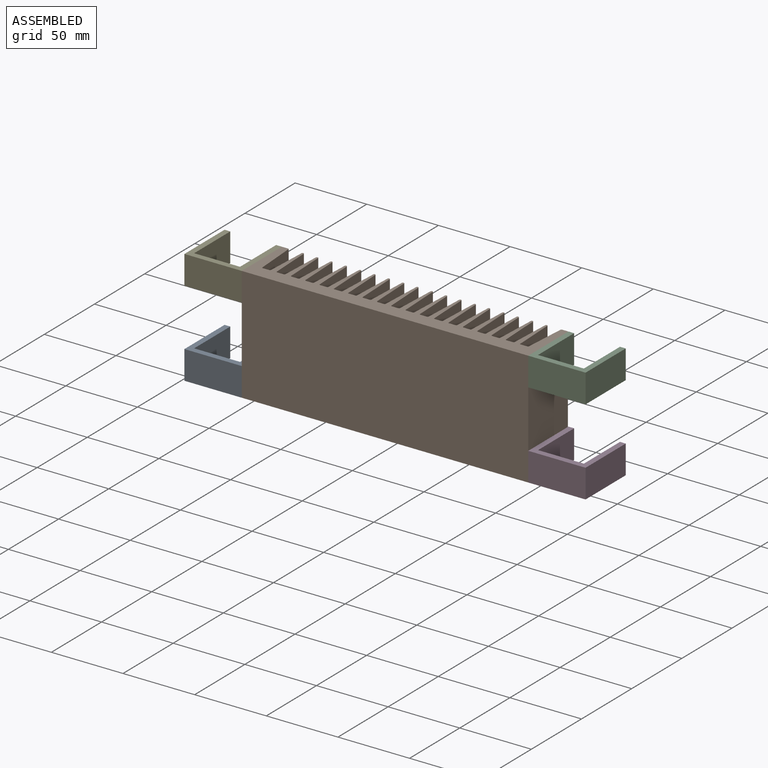
[diagram: assembled view]
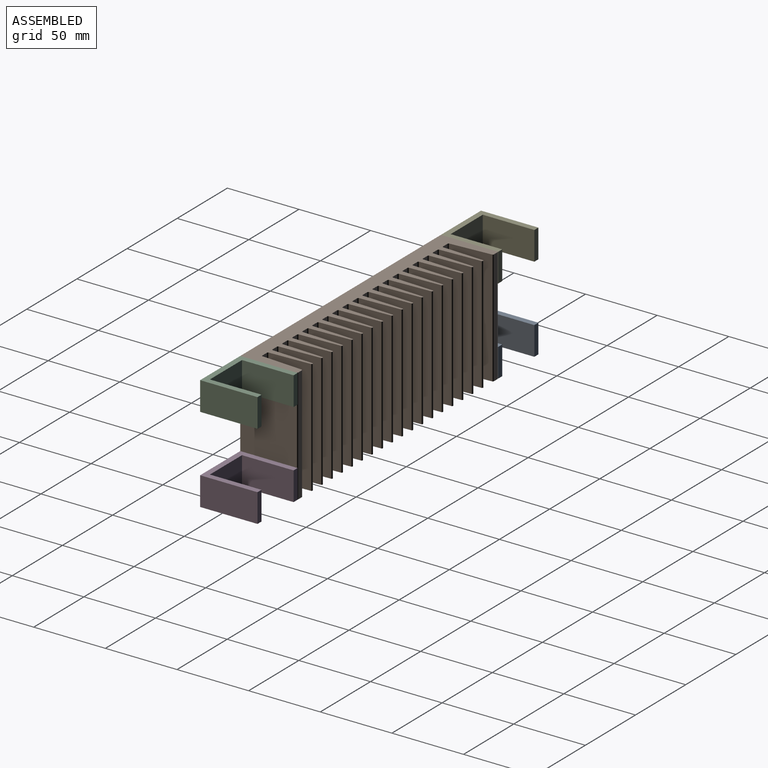
[diagram: assembled view, second angle]
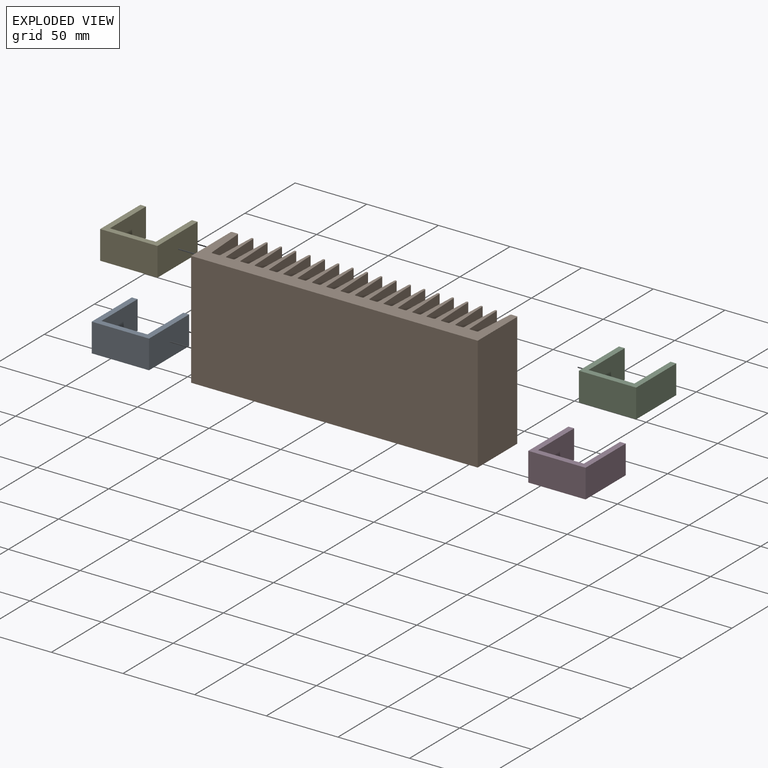
[diagram: exploded view]
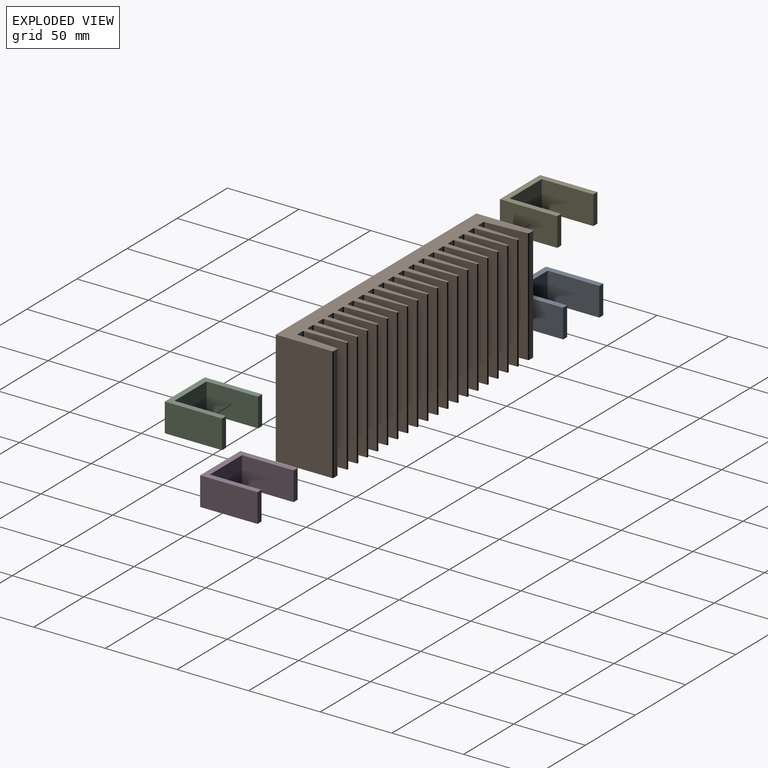
[diagram: exploded view, second angle]
ASSEMBLY  parts=5 mates=4
PART A: 10 faces, bbox 40x40x20 mm
  f0: plane 40x20mm, normal (-1,0,0), area 800mm2, adj f1,f7,f8,f9
  f1: plane 40x20mm, normal (0,-1,0), area 800mm2, adj f0,f2,f8,f9
  f2: plane 40x20mm, normal (1,0,0), area 800mm2, adj f1,f3,f8,f9
  f3: plane 20x4mm, normal (0,1,0), area 80mm2, adj f2,f4,f8,f9
  f4: plane 36x20mm, normal (-1,0,0), area 720mm2, adj f3,f5,f8,f9
  f5: plane 32x20mm, normal (0,1,0), area 640mm2, adj f4,f6,f8,f9
  f6: plane 36x20mm, normal (1,0,0), area 720mm2, adj f5,f7,f8,f9
  f7: plane 20x4mm, normal (0,1,0), area 80mm2, adj f0,f6,f8,f9
  f8: plane 40x40mm, normal (0,0,1), area 448mm2, adj f0,f1,f2,f3,f4,f5,f6,f7
  f9: plane 40x40mm, normal (0,0,-1), area 448mm2, adj f0,f1,f2,f3,f4,f5,f6,f7
PART B: 124 faces, bbox 200x40x80 mm
  f0: cylinder r=0.8mm len=80mm, axis (0,0,1), area 96.3mm2, adj f1,f78,f88,f123
  f1: plane 80x4.49mm, normal (0,1,0), area 358.8mm2, adj f0,f2,f78,f123
  f2: cylinder r=0.8mm len=80mm, axis (0,0,1), area 97.8mm2, adj f1,f3,f78,f123
  f3: plane 80x28.52mm, normal (1,0.04,0), area 2283.4mm2, adj f2,f78,f87,f123
  f4: cylinder r=0.8mm len=80mm, axis (0,0,1), area 97.8mm2, adj f5,f78,f86,f123
  f5: plane 80x4.47mm, normal (0,1,0), area 357.4mm2, adj f4,f6,f78,f123
  f6: cylinder r=0.8mm len=80mm, axis (0,0,1), area 97.8mm2, adj f5,f7,f78,f123
  f7: plane 80x28.52mm, normal (1,0.04,0), area 2283.4mm2, adj f6,f78,f85,f123
  f8: cylinder r=0.8mm len=80mm, axis (0,0,1), area 97.8mm2, adj f9,f78,f84,f123
  f9: plane 80x4.47mm, normal (0,1,0), area 357.4mm2, adj f8,f10,f78,f123
  f10: cylinder r=0.8mm len=80mm, axis (0,0,1), area 97.8mm2, adj f9,f11,f78,f123
  f11: plane 80x28.52mm, normal (1,0.04,0), area 2283.4mm2, adj f10,f78,f83,f123
  f12: cylinder r=0.8mm len=80mm, axis (0,0,1), area 97.8mm2, adj f13,f78,f82,f123
  f13: plane 80x4.47mm, normal (0,1,0), area 357.4mm2, adj f12,f14,f78,f123
  f14: cylinder r=0.8mm len=80mm, axis (0,0,1), area 97.8mm2, adj f13,f15,f78,f123
  f15: plane 80x28.52mm, normal (1,0.04,0), area 2283.4mm2, adj f14,f78,f81,f123
  f16: cylinder r=0.8mm len=80mm, axis (0,0,1), area 97.8mm2, adj f17,f78,f122,f123
  f17: plane 80x4.47mm, normal (0,1,0), area 357.4mm2, adj f16,f18,f78,f123
  f18: cylinder r=0.8mm len=80mm, axis (0,0,1), area 97.8mm2, adj f17,f19,f78,f123
  f19: plane 80x28.52mm, normal (1,0.04,0), area 2283.4mm2, adj f18,f78,f121,f123
  f20: cylinder r=0.8mm len=80mm, axis (0,0,1), area 97.8mm2, adj f21,f78,f120,f123
  f21: plane 80x4.47mm, normal (0,1,0), area 357.4mm2, adj f20,f22,f78,f123
  f22: cylinder r=0.8mm len=80mm, axis (0,0,1), area 97.8mm2, adj f21,f23,f78,f123
  f23: plane 80x28.52mm, normal (1,0.04,0), area 2283.4mm2, adj f22,f78,f119,f123
  f24: cylinder r=0.8mm len=80mm, axis (0,0,1), area 97.8mm2, adj f25,f78,f118,f123
  f25: plane 80x4.47mm, normal (0,1,0), area 357.4mm2, adj f24,f26,f78,f123
  f26: cylinder r=0.8mm len=80mm, axis (0,0,1), area 97.8mm2, adj f25,f27,f78,f123
  f27: plane 80x28.52mm, normal (1,0.04,0), area 2283.4mm2, adj f26,f78,f117,f123
  f28: cylinder r=0.8mm len=80mm, axis (0,0,1), area 97.8mm2, adj f29,f78,f116,f123
  f29: plane 80x4.47mm, normal (0,1,0), area 357.4mm2, adj f28,f30,f78,f123
  f30: cylinder r=0.8mm len=80mm, axis (0,0,1), area 97.8mm2, adj f29,f31,f78,f123
  f31: plane 80x28.52mm, normal (1,0.04,0), area 2283.4mm2, adj f30,f78,f115,f123
  f32: cylinder r=0.8mm len=80mm, axis (0,0,1), area 97.8mm2, adj f33,f78,f114,f123
  f33: plane 80x4.47mm, normal (0,1,0), area 357.4mm2, adj f32,f34,f78,f123
  f34: cylinder r=0.8mm len=80mm, axis (0,0,1), area 97.8mm2, adj f33,f35,f78,f123
  f35: plane 80x28.52mm, normal (1,0.04,0), area 2283.4mm2, adj f34,f78,f113,f123
  f36: cylinder r=0.8mm len=80mm, axis (0,0,1), area 97.8mm2, adj f37,f78,f112,f123
  f37: plane 80x4.47mm, normal (0,1,0), area 357.4mm2, adj f36,f38,f78,f123
  f38: cylinder r=0.8mm len=80mm, axis (0,0,1), area 97.8mm2, adj f37,f39,f78,f123
  f39: plane 80x28.52mm, normal (1,0.04,0), area 2283.4mm2, adj f38,f78,f111,f123
  f40: cylinder r=0.8mm len=80mm, axis (0,0,1), area 97.8mm2, adj f41,f78,f110,f123
  f41: plane 80x4.47mm, normal (0,1,0), area 357.4mm2, adj f40,f42,f78,f123
  f42: cylinder r=0.8mm len=80mm, axis (0,0,1), area 97.8mm2, adj f41,f43,f78,f123
  f43: plane 80x28.52mm, normal (1,0.04,0), area 2283.4mm2, adj f42,f78,f109,f123
  f44: cylinder r=0.8mm len=80mm, axis (0,0,1), area 97.8mm2, adj f45,f78,f108,f123
  f45: plane 80x4.47mm, normal (0,1,0), area 357.4mm2, adj f44,f46,f78,f123
  f46: cylinder r=0.8mm len=80mm, axis (0,0,1), area 97.8mm2, adj f45,f47,f78,f123
  f47: plane 80x28.52mm, normal (1,0.04,0), area 2283.4mm2, adj f46,f78,f107,f123
  f48: cylinder r=0.8mm len=80mm, axis (0,0,1), area 97.8mm2, adj f49,f78,f106,f123
  f49: plane 80x4.47mm, normal (0,1,0), area 357.4mm2, adj f48,f50,f78,f123
  f50: cylinder r=0.8mm len=80mm, axis (0,0,1), area 97.8mm2, adj f49,f51,f78,f123
  f51: plane 80x28.52mm, normal (1,0.04,0), area 2283.4mm2, adj f50,f78,f105,f123
  f52: cylinder r=0.8mm len=80mm, axis (0,0,1), area 97.8mm2, adj f53,f78,f104,f123
  f53: plane 80x4.47mm, normal (0,1,0), area 357.4mm2, adj f52,f54,f78,f123
  f54: cylinder r=0.8mm len=80mm, axis (0,0,1), area 97.8mm2, adj f53,f55,f78,f123
  f55: plane 80x28.52mm, normal (1,0.04,0), area 2283.4mm2, adj f54,f78,f103,f123
  f56: cylinder r=0.8mm len=80mm, axis (0,0,1), area 97.8mm2, adj f57,f78,f102,f123
  f57: plane 80x4.47mm, normal (0,1,0), area 357.4mm2, adj f56,f58,f78,f123
  f58: cylinder r=0.8mm len=80mm, axis (0,0,1), area 97.8mm2, adj f57,f59,f78,f123
  f59: plane 80x28.52mm, normal (1,0.04,0), area 2283.4mm2, adj f58,f78,f101,f123
  f60: cylinder r=0.8mm len=80mm, axis (0,0,1), area 97.8mm2, adj f61,f78,f100,f123
  f61: plane 80x4.47mm, normal (0,1,0), area 357.4mm2, adj f60,f62,f78,f123
  f62: cylinder r=0.8mm len=80mm, axis (0,0,1), area 97.8mm2, adj f61,f63,f78,f123
  f63: plane 80x28.52mm, normal (1,0.04,0), area 2283.4mm2, adj f62,f78,f99,f123
  f64: cylinder r=0.8mm len=80mm, axis (0,0,1), area 97.8mm2, adj f65,f78,f98,f123
  f65: plane 80x4.47mm, normal (0,1,0), area 357.4mm2, adj f64,f66,f78,f123
  f66: cylinder r=0.8mm len=80mm, axis (0,0,1), area 97.8mm2, adj f65,f67,f78,f123
  f67: plane 80x28.52mm, normal (1,0.04,0), area 2283.4mm2, adj f66,f78,f97,f123
  f68: cylinder r=0.8mm len=80mm, axis (0,0,1), area 97.8mm2, adj f69,f78,f96,f123
  f69: plane 80x4.47mm, normal (0,1,0), area 357.4mm2, adj f68,f70,f78,f123
  f70: cylinder r=0.8mm len=80mm, axis (0,0,1), area 97.8mm2, adj f69,f71,f78,f123
  f71: plane 80x28.52mm, normal (1,0.04,0), area 2283.4mm2, adj f70,f78,f95,f123
  f72: cylinder r=0.8mm len=80mm, axis (0,0,1), area 97.8mm2, adj f73,f78,f94,f123
  f73: plane 80x4.49mm, normal (0,1,0), area 358.8mm2, adj f72,f74,f78,f123
  f74: cylinder r=0.8mm len=80mm, axis (0,0,1), area 96.3mm2, adj f73,f75,f78,f123
  f75: plane 80x28.55mm, normal (1,0.07,0), area 2289.3mm2, adj f74,f78,f93,f123
  f76: cylinder r=0.75mm len=80mm, axis (0,0,1), area 94.2mm2, adj f77,f78,f90,f123
  f77: plane 80x3.55mm, normal (0,1,0), area 283.9mm2, adj f76,f78,f89,f123
  f78: plane 200x40mm, normal (0,0,-1), area 3828.4mm2, adj f0,f1,f2,f3,f4,f5,f6,f7
  f79: cylinder r=0.75mm len=80mm, axis (0,0,1), area 94.2mm2, adj f78,f80,f92,f123
  f80: plane 80x3.55mm, normal (0,1,0), area 283.9mm2, adj f78,f79,f93,f123
  f81: cylinder r=0.75mm len=80mm, axis (0,0,1), area 183.4mm2, adj f15,f78,f122,f123
  f82: plane 80x28.52mm, normal (-1,0.04,0), area 2283.4mm2, adj f12,f78,f83,f123
  f83: cylinder r=0.75mm len=80mm, axis (0,0,1), area 183.4mm2, adj f11,f78,f82,f123
  f84: plane 80x28.52mm, normal (-1,0.04,0), area 2283.4mm2, adj f8,f78,f85,f123
  f85: cylinder r=0.75mm len=80mm, axis (0,0,1), area 183.4mm2, adj f7,f78,f84,f123
  f86: plane 80x28.52mm, normal (-1,0.04,0), area 2283.4mm2, adj f4,f78,f87,f123
  f87: cylinder r=0.75mm len=80mm, axis (0,0,1), area 183.4mm2, adj f3,f78,f86,f123
  f88: plane 80x28.55mm, normal (-1,0.07,0), area 2289.3mm2, adj f0,f78,f89,f123
  f89: cylinder r=0.75mm len=80mm, axis (0,0,1), area 90.3mm2, adj f77,f78,f88,f123
  f90: plane 80x39.25mm, normal (1,0,0), area 3140mm2, adj f76,f78,f91,f123
  f91: plane 200x80mm, normal (0,-1,0), area 16000mm2, adj f78,f90,f92,f123
  f92: plane 80x39.25mm, normal (-1,0,0), area 3140mm2, adj f78,f79,f91,f123
  f93: cylinder r=0.75mm len=80mm, axis (0,0,1), area 90.3mm2, adj f75,f78,f80,f123
  f94: plane 80x28.52mm, normal (-1,0.04,0), area 2283.4mm2, adj f72,f78,f95,f123
  f95: cylinder r=0.75mm len=80mm, axis (0,0,1), area 183.4mm2, adj f71,f78,f94,f123
  f96: plane 80x28.52mm, normal (-1,0.04,0), area 2283.4mm2, adj f68,f78,f97,f123
  f97: cylinder r=0.75mm len=80mm, axis (0,0,1), area 183.4mm2, adj f67,f78,f96,f123
  f98: plane 80x28.52mm, normal (-1,0.04,0), area 2283.4mm2, adj f64,f78,f99,f123
  f99: cylinder r=0.75mm len=80mm, axis (0,0,1), area 183.4mm2, adj f63,f78,f98,f123
  f100: plane 80x28.52mm, normal (-1,0.04,0), area 2283.4mm2, adj f60,f78,f101,f123
  f101: cylinder r=0.75mm len=80mm, axis (0,0,1), area 183.4mm2, adj f59,f78,f100,f123
  f102: plane 80x28.52mm, normal (-1,0.04,0), area 2283.4mm2, adj f56,f78,f103,f123
  f103: cylinder r=0.75mm len=80mm, axis (0,0,1), area 183.4mm2, adj f55,f78,f102,f123
  f104: plane 80x28.52mm, normal (-1,0.04,0), area 2283.4mm2, adj f52,f78,f105,f123
  f105: cylinder r=0.75mm len=80mm, axis (0,0,1), area 183.4mm2, adj f51,f78,f104,f123
  f106: plane 80x28.52mm, normal (-1,0.04,0), area 2283.4mm2, adj f48,f78,f107,f123
  f107: cylinder r=0.75mm len=80mm, axis (0,0,1), area 183.4mm2, adj f47,f78,f106,f123
  f108: plane 80x28.52mm, normal (-1,0.04,0), area 2283.4mm2, adj f44,f78,f109,f123
  f109: cylinder r=0.75mm len=80mm, axis (0,0,1), area 183.4mm2, adj f43,f78,f108,f123
  f110: plane 80x28.52mm, normal (-1,0.04,0), area 2283.4mm2, adj f40,f78,f111,f123
  f111: cylinder r=0.75mm len=80mm, axis (0,0,1), area 183.4mm2, adj f39,f78,f110,f123
  f112: plane 80x28.52mm, normal (-1,0.04,0), area 2283.4mm2, adj f36,f78,f113,f123
  f113: cylinder r=0.75mm len=80mm, axis (0,0,1), area 183.4mm2, adj f35,f78,f112,f123
  f114: plane 80x28.52mm, normal (-1,0.04,0), area 2283.4mm2, adj f32,f78,f115,f123
  f115: cylinder r=0.75mm len=80mm, axis (0,0,1), area 183.4mm2, adj f31,f78,f114,f123
  f116: plane 80x28.52mm, normal (-1,0.04,0), area 2283.4mm2, adj f28,f78,f117,f123
  f117: cylinder r=0.75mm len=80mm, axis (0,0,1), area 183.4mm2, adj f27,f78,f116,f123
  f118: plane 80x28.52mm, normal (-1,0.04,0), area 2283.4mm2, adj f24,f78,f119,f123
  f119: cylinder r=0.75mm len=80mm, axis (0,0,1), area 183.4mm2, adj f23,f78,f118,f123
  f120: plane 80x28.52mm, normal (-1,0.04,0), area 2283.4mm2, adj f20,f78,f121,f123
  f121: cylinder r=0.75mm len=80mm, axis (0,0,1), area 183.4mm2, adj f19,f78,f120,f123
  f122: plane 80x28.52mm, normal (-1,0.04,0), area 2283.4mm2, adj f16,f78,f81,f123
  f123: plane 200x40mm, normal (0,0,1), area 3828.4mm2, adj f0,f1,f2,f3,f4,f5,f6,f7
PART C: same geometry as A
PART D: same geometry as A
PART E: same geometry as A
PLACE A t=(-3.15,29.94,-0.98)mm
PLACE B t=(36.85,29.94,-0.98)mm
PLACE C t=(236.85,29.94,59.02)mm
PLACE D t=(236.85,29.94,-0.98)mm
PLACE E t=(-3.15,29.94,59.02)mm
MATE fastened B.f92 <-> E.f2  axis (-1,0,0) through (36.85,29.94,79.02)mm
MATE fastened B.f90 <-> D.f0  axis (1,0,0) through (236.85,29.94,-0.98)mm
MATE fastened B.f78 <-> A.f9  axis (0,0,1) through (36.85,29.94,-0.98)mm
MATE fastened B.f90 <-> C.f0  axis (1,0,0) through (236.85,29.94,79.02)mm
